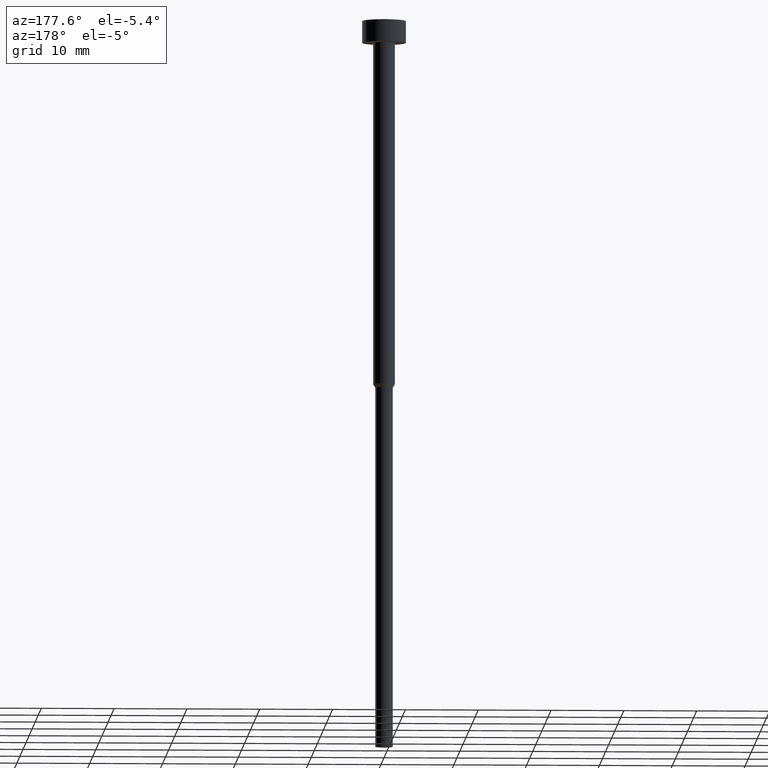
[diagram: clean part render]
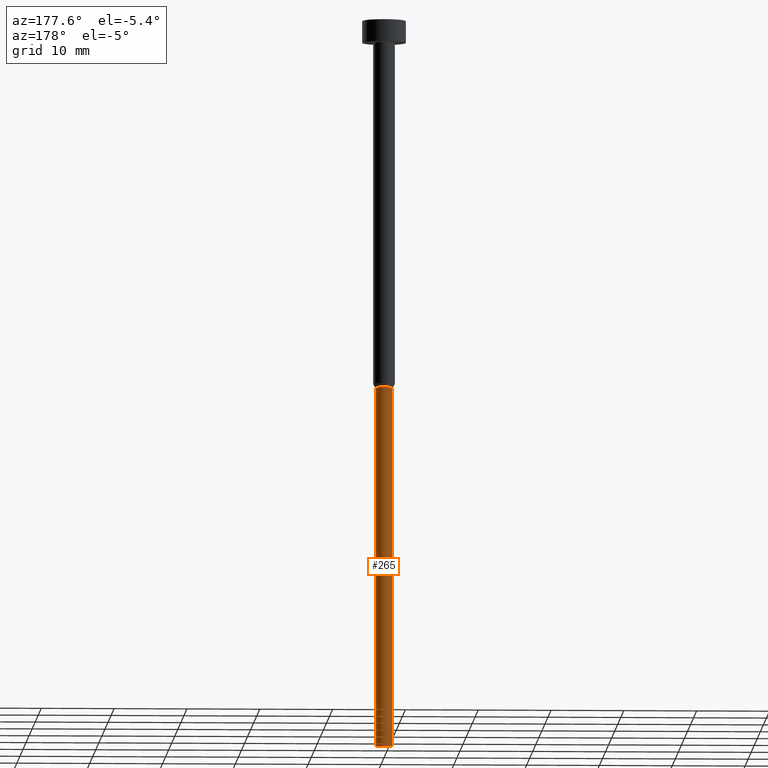
[diagram: same view with one face highlighted and labeled with its STEP entity id]
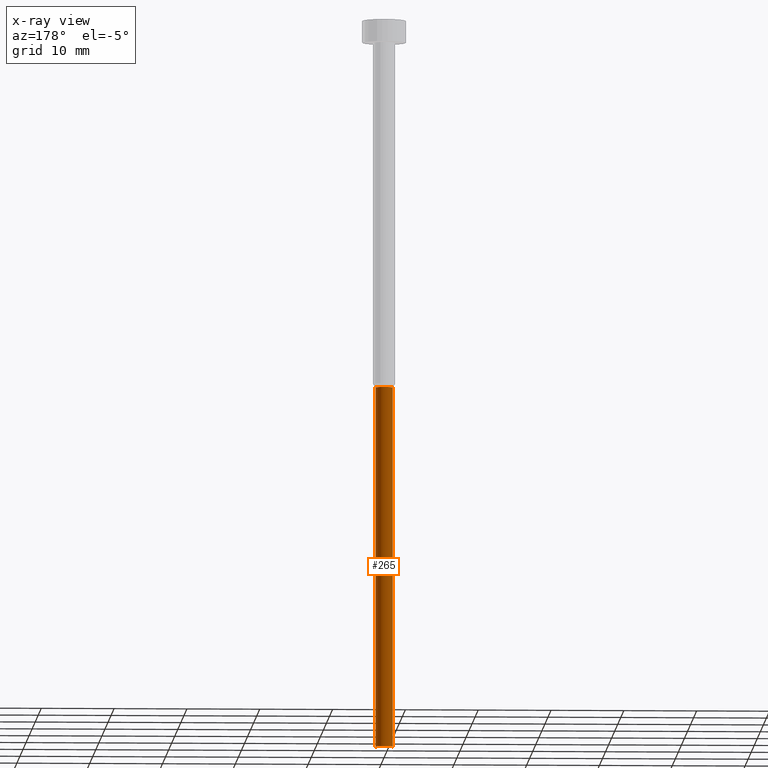
[diagram: x-ray of the same camera — body ghosted, the highlighted face saturated]
A machine part, auxiliary view. The second image highlights one B-rep face of the part: STEP entity #265.
The next image is the same camera in x-ray: the body ghosted, the highlighted face saturated — about 0% of this face is hidden behind the body in this view.
In plain terms, the highlighted cylindrical surface (edge-blend (fillet) strip) has radius 1.2 mm, axis along (-0, -0, 1).
Its self-contained STEP definition (entity closure, byte-faithful):
#5 = CYLINDRICAL_SURFACE ( 'NONE', #234, 1.199999999999999956 ) ;
#6 = DIRECTION ( 'NONE',  ( -0.000000000000000000, -0.000000000000000000, 1.000000000000000000 ) ) ;
#14 = VERTEX_POINT ( 'NONE', #315 ) ;
#21 = EDGE_CURVE ( 'NONE', #132, #14, #201, .T. ) ;
#30 = CARTESIAN_POINT ( 'NONE',  ( 0.000000000000000000, 0.000000000000000000, 0.000000000000000000 ) ) ;
#33 = AXIS2_PLACEMENT_3D ( 'NONE', #302, #352, #327 ) ;
#42 = ORIENTED_EDGE ( 'NONE', *, *, #142, .T. ) ;
#58 = DIRECTION ( 'NONE',  ( -0.000000000000000000, -0.000000000000000000, 1.000000000000000000 ) ) ;
#61 = CARTESIAN_POINT ( 'NONE',  ( -1.199999999999999956, 1.469576158976823553E-16, -50.51961524227066747 ) ) ;
#80 = EDGE_CURVE ( 'NONE', #14, #207, #161, .T. ) ;
#88 = EDGE_LOOP ( 'NONE', ( #42, #335, #181, #220 ) ) ;
#105 = AXIS2_PLACEMENT_3D ( 'NONE', #264, #296, #270 ) ;
#111 = DIRECTION ( 'NONE',  ( -0.000000000000000000, -0.000000000000000000, 1.000000000000000000 ) ) ;
#131 = CARTESIAN_POINT ( 'NONE',  ( 1.199999999999999956, 0.000000000000000000, -100.0000000000000000 ) ) ;
#132 = VERTEX_POINT ( 'NONE', #131 ) ;
#138 = LINE ( 'NONE', #259, #261 ) ;
#142 = EDGE_CURVE ( 'NONE', #132, #164, #185, .T. ) ;
#161 = CIRCLE ( 'NONE', #105, 1.199999999999999956 ) ;
#164 = VERTEX_POINT ( 'NONE', #174 ) ;
#174 = CARTESIAN_POINT ( 'NONE',  ( -1.199999999999999956, 1.469576158976823553E-16, -100.0000000000000000 ) ) ;
#181 = ORIENTED_EDGE ( 'NONE', *, *, #80, .F. ) ;
#185 = CIRCLE ( 'NONE', #33, 1.199999999999999956 ) ;
#190 = CARTESIAN_POINT ( 'NONE',  ( 1.199999999999999956, 0.000000000000000000, 0.000000000000000000 ) ) ;
#201 = LINE ( 'NONE', #190, #218 ) ;
#207 = VERTEX_POINT ( 'NONE', #61 ) ;
#218 = VECTOR ( 'NONE', #58, 1000.000000000000000 ) ;
#220 = ORIENTED_EDGE ( 'NONE', *, *, #21, .F. ) ;
#227 = DIRECTION ( 'NONE',  ( 1.000000000000000000, 0.000000000000000000, 0.000000000000000000 ) ) ;
#234 = AXIS2_PLACEMENT_3D ( 'NONE', #30, #111, #227 ) ;
#259 = CARTESIAN_POINT ( 'NONE',  ( -1.199999999999999956, 1.469576158976823553E-16, 0.000000000000000000 ) ) ;
#261 = VECTOR ( 'NONE', #6, 1000.000000000000000 ) ;
#264 = CARTESIAN_POINT ( 'NONE',  ( 0.000000000000000000, 0.000000000000000000, -50.51961524227066747 ) ) ;
#265 = ADVANCED_FACE ( 'NONE', ( #339 ), #5, .T. ) ;
#270 = DIRECTION ( 'NONE',  ( 1.000000000000000000, 0.000000000000000000, 0.000000000000000000 ) ) ;
#296 = DIRECTION ( 'NONE',  ( -0.000000000000000000, -0.000000000000000000, 1.000000000000000000 ) ) ;
#299 = EDGE_CURVE ( 'NONE', #164, #207, #138, .T. ) ;
#302 = CARTESIAN_POINT ( 'NONE',  ( 0.000000000000000000, 0.000000000000000000, -100.0000000000000000 ) ) ;
#315 = CARTESIAN_POINT ( 'NONE',  ( 1.199999999999999956, 0.000000000000000000, -50.51961524227066747 ) ) ;
#327 = DIRECTION ( 'NONE',  ( 1.000000000000000000, 0.000000000000000000, 0.000000000000000000 ) ) ;
#335 = ORIENTED_EDGE ( 'NONE', *, *, #299, .T. ) ;
#339 = FACE_OUTER_BOUND ( 'NONE', #88, .T. ) ;
#352 = DIRECTION ( 'NONE',  ( -0.000000000000000000, -0.000000000000000000, 1.000000000000000000 ) ) ;